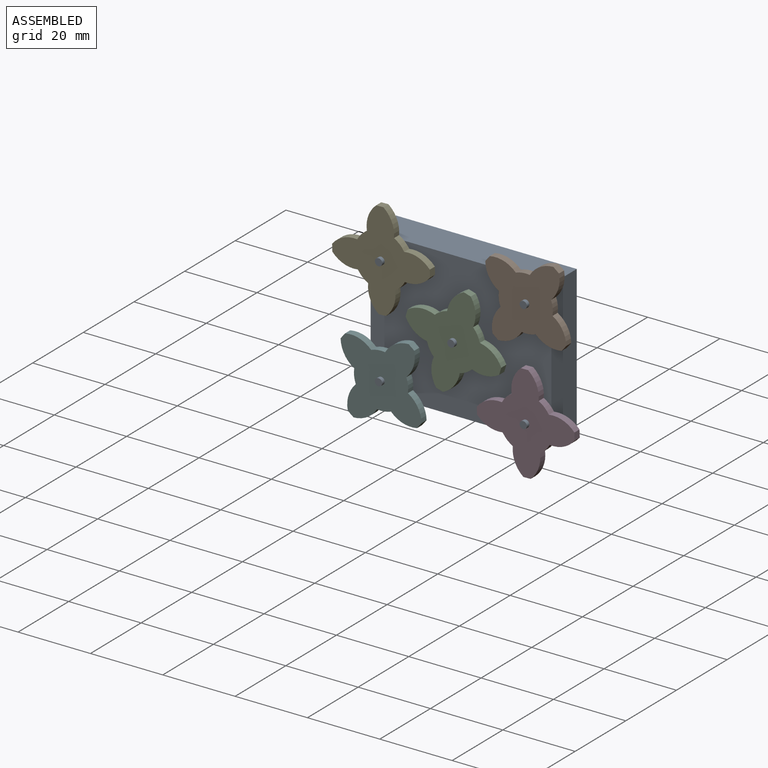
[diagram: assembled view]
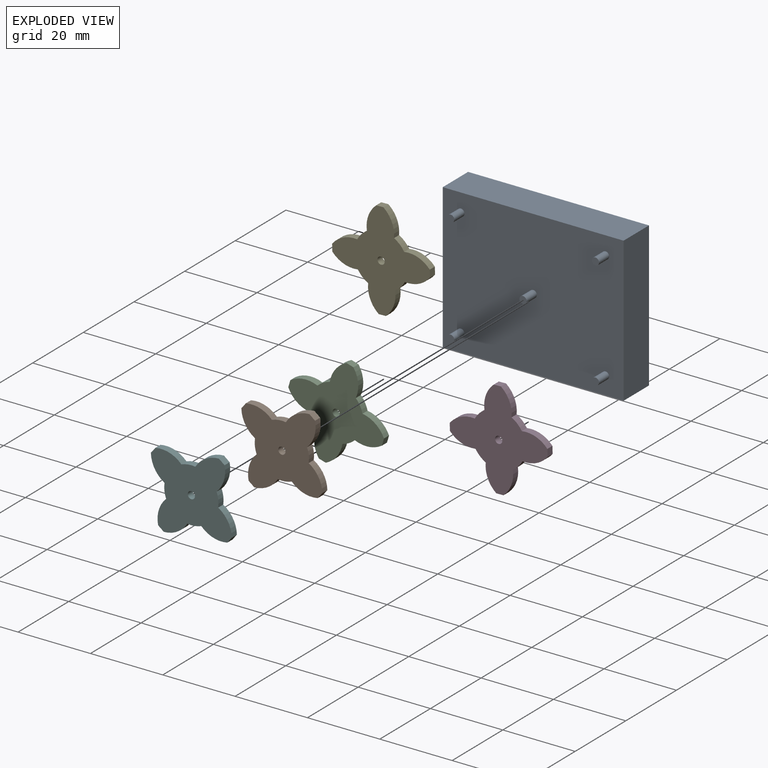
[diagram: exploded view]
GUIDED TOUR — MATED ASSEMBLY (Onshape document cedbb3737e74594927d0f77c, AutoMate assembly cedbb3737e74594927d0f77c_dc4aef09177c80593e6a7a5c_b1bb9737bac54ed19424f288_default)

This assembly has 6 components, labeled P0..P5 below (a component is one placed occurrence of a part; the same part can appear more than once), held together by 5 mates. A mate is a constraint between two components; its type names the relative motion it leaves free:
  REVOLUTE — leaves rotation about the listed axis free (a hinge).
Axis/direction vectors are unit vectors and 'through' points are millimeter coordinates, both in the assembly's world frame.

MATES
  1. REVOLUTE "Revolute 1": P0 <-> P4, axis (0.000, 1.000, 0.000) through (-31.62, -7.64, 23.10) mm
  2. REVOLUTE "Revolute 2": P0 <-> P2, axis (0.000, 1.000, 0.000) through (-11.62, -7.64, 8.10) mm
  3. REVOLUTE "Revolute 3": P0 <-> P1, axis (0.000, 1.000, 0.000) through (8.38, -7.64, 23.10) mm
  4. REVOLUTE "Revolute 5": P0 <-> P5, axis (0.000, 1.000, 0.000) through (-31.62, -7.64, -6.90) mm
  5. REVOLUTE "Revolute 4": P0 <-> P3, axis (0.000, 1.000, 0.000) through (8.38, -7.64, -6.90) mm

ASSEMBLY ORDER
  1. P4 — the base component [order verified]
  2. P3 [order verified]
  3. P0 [order verified]
  4. P2 [order verified]
  5. P5 [order verified]
  6. P1 [order verified]
Order-tag legend:
  [order verified] — this step's position reverses a verified removal order: the component was checked to insert without passing through the ones already placed.

Of the 6 components, 6 carry the full construction recipe — the FeatureScript program that regenerates the part's solid from scratch; the rest are supplied as boundary geometry only.
Each toured component is shown spotlighted twice — in the assembled view, then in the exploded view, where a leader line traces a displaced component back to its assembled socket (saturated green if recipe-attached, orange if geometry-only; every other component desaturated gray) — followed by its recipe or geometry summary and the mates that hold it.
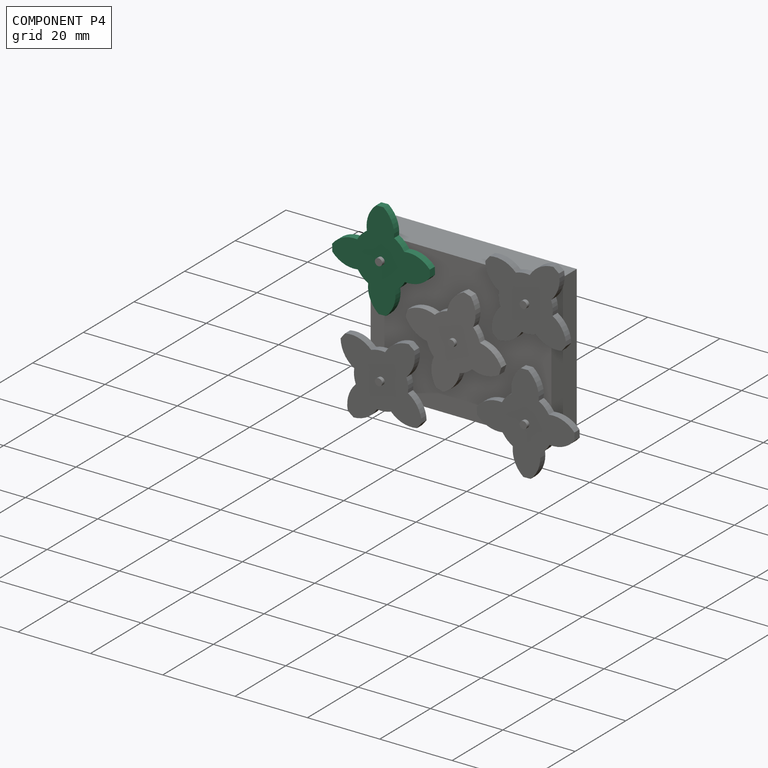
[diagram: component P4 — assembled]
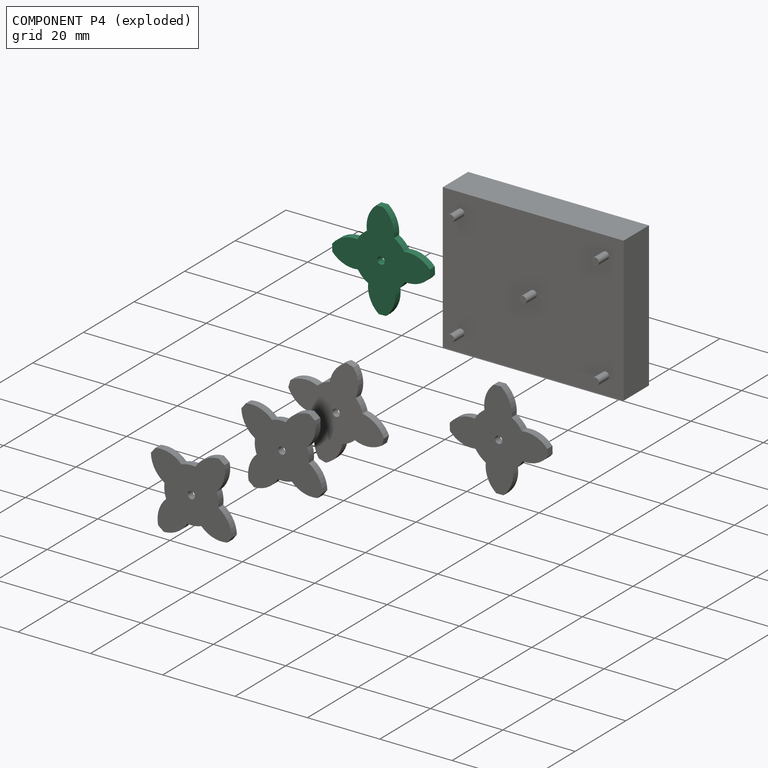
[diagram: component P4 — exploded]
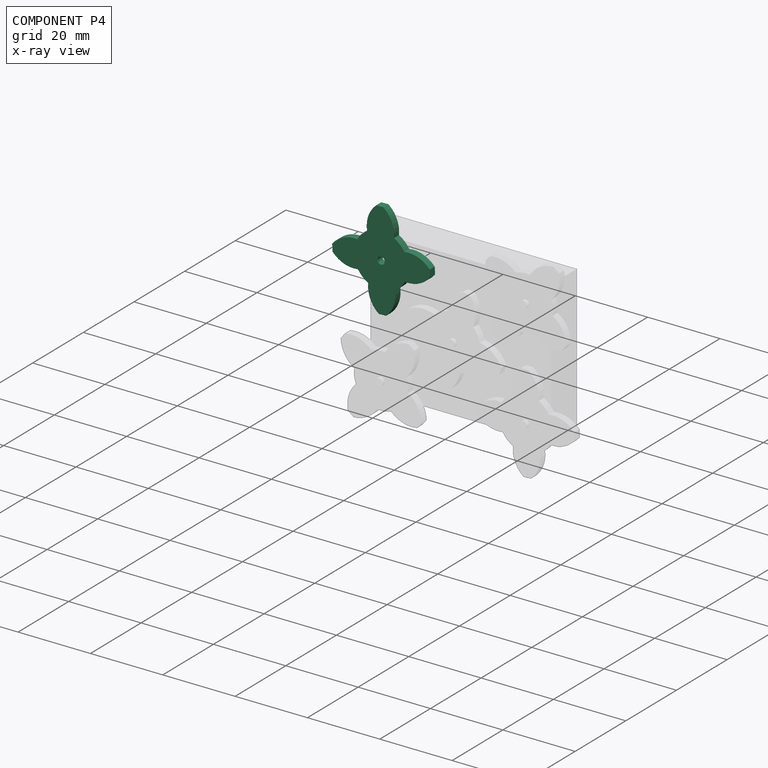
[diagram: component P4 — x-ray view]
COMPONENT P4 — same part as P1 (CADFS 00180787); its construction recipe is shown at P1.
Held by: REVOLUTE mate "Revolute 1" to P0.
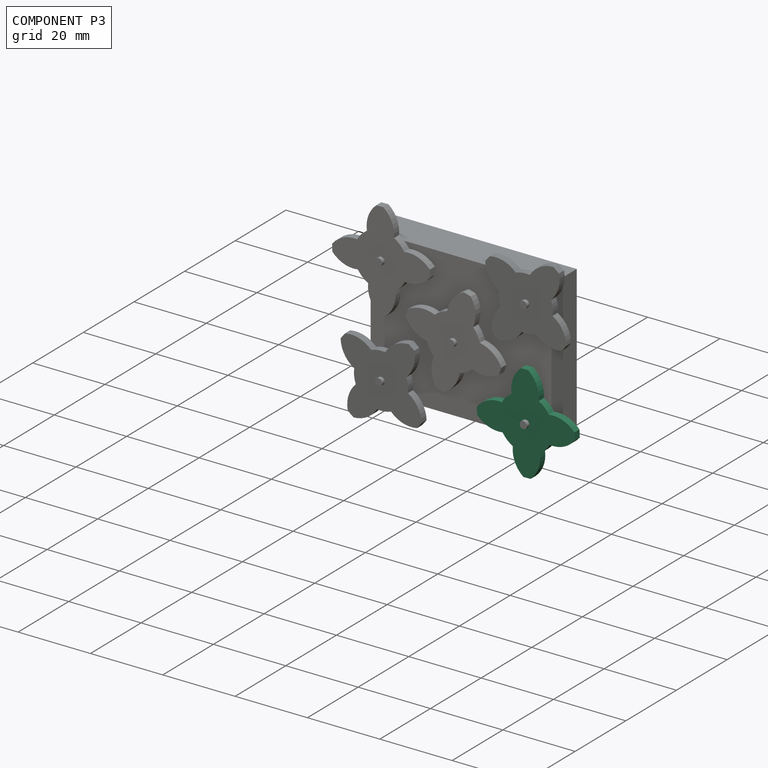
[diagram: component P3 — assembled]
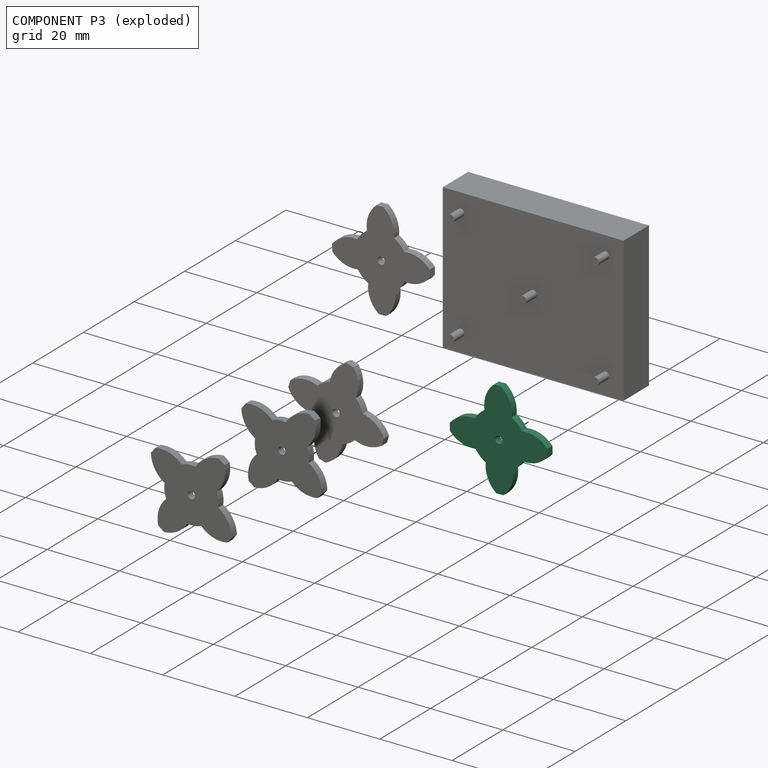
[diagram: component P3 — exploded]
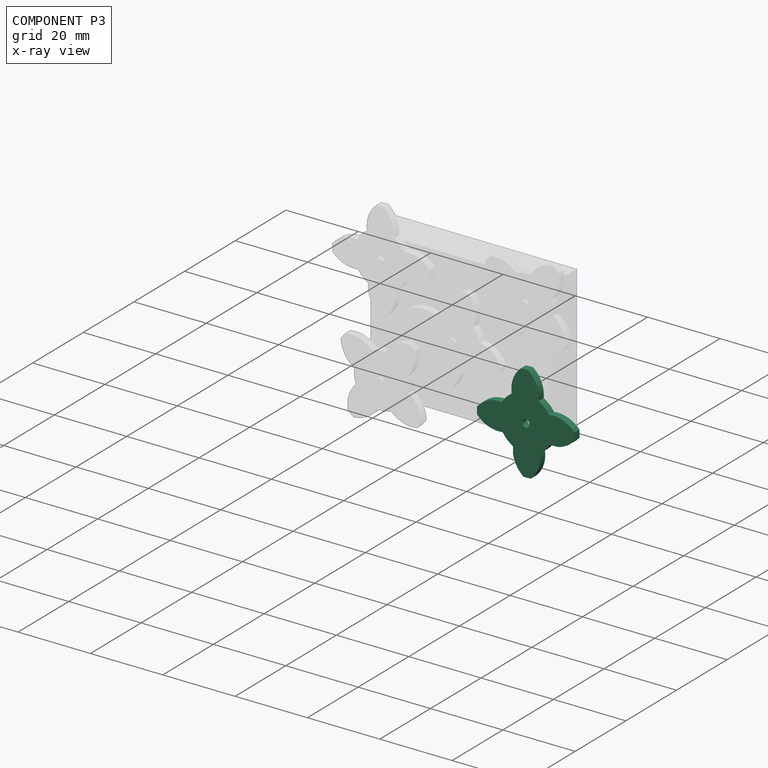
[diagram: component P3 — x-ray view]
COMPONENT P3 — same part as P1 (CADFS 00180787); its construction recipe is shown at P1.
Held by: REVOLUTE mate "Revolute 4" to P0.
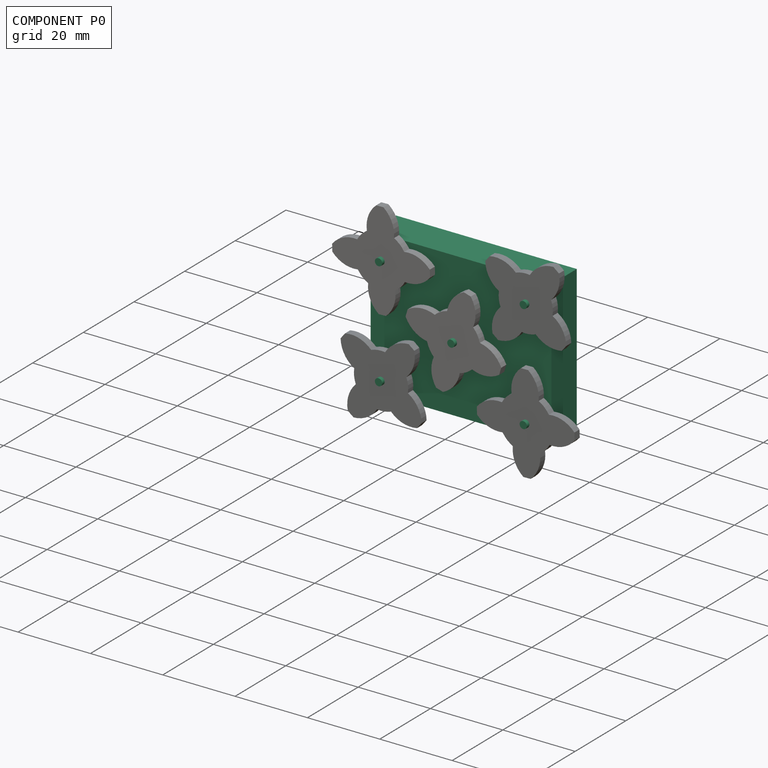
[diagram: component P0 — assembled]
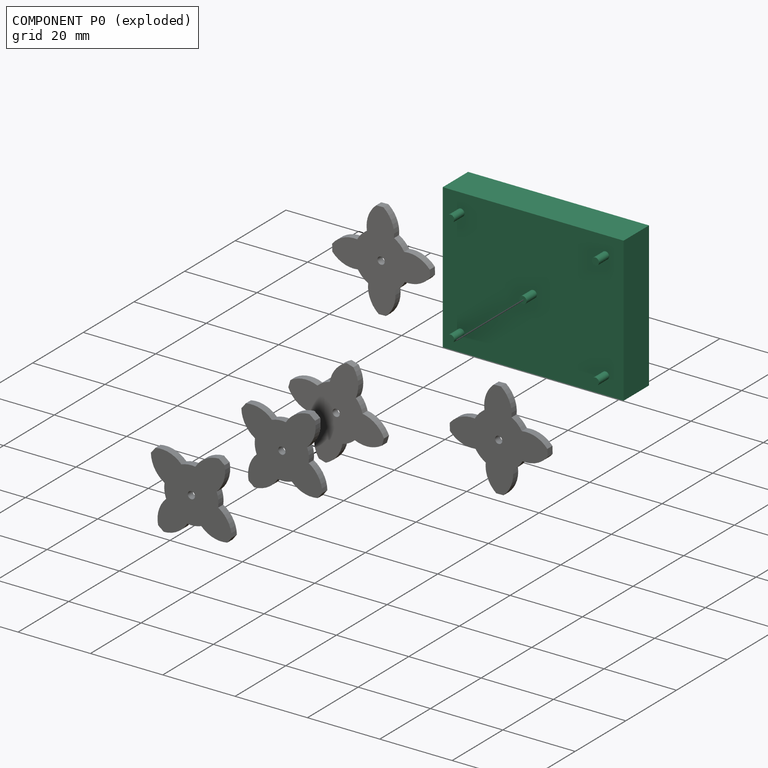
[diagram: component P0 — exploded]
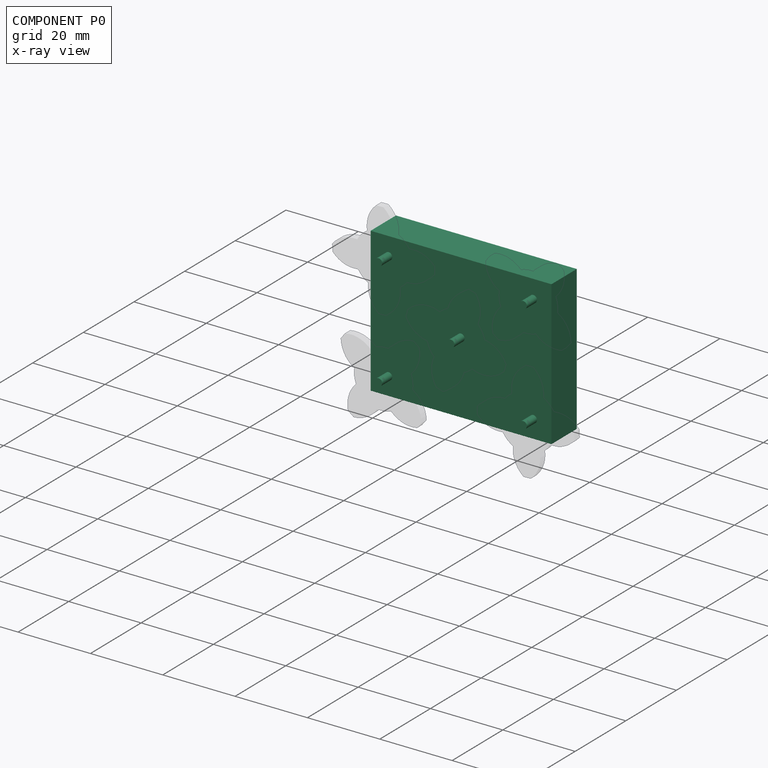
[diagram: component P0 — x-ray view]
COMPONENT P0 — recipe-attached (CADFS 00180788, mesh-verified: the recipe's output STEP matches this component's geometry to below the mesh-comparison resolution (tessellation chordal tolerance ~0.0983 mm)).
Held by: REVOLUTE mate "Revolute 1" to P4; REVOLUTE mate "Revolute 2" to P2; REVOLUTE mate "Revolute 3" to P1; REVOLUTE mate "Revolute 5" to P5; REVOLUTE mate "Revolute 4" to P3.
Construction recipe (FeatureScript — the CAD program that rebuilds this solid; sketch coordinates are in the units given by the * unit suffixes, e.g. mm):

FeatureScript 1511;
import(path : "onshape/std/geometry.fs", version : "1511.0");
import(path : "onshape/std/common.fs", version : "1511.0");
const mm = millimeter;
const VERTEX = EntityType.VERTEX;
const EDGE = EntityType.EDGE;
const FACE = EntityType.FACE;
const BODY = EntityType.BODY;
function v(x, y){return vector(x, y);}
function OD(order){return orderDisambiguation(order);}
function OSD(set){return originalSetDisambiguation(set);}
function TD(topology){return topologyDisambiguation(topology);}
function TDD(query){return trueDependencyDisambiguation(query);}
function sQuery(a, b, c) {return sketchEntityQuery(a, b, c);}

annotation { "Feature Type Name" : "Feature", "Feature Type Description" : "" }
export const myFeature = defineFeature(function(context is Context, id is Id, definition is map)
    precondition{}
    {
        {
            var Q0;
            Q0=qCreatedBy(makeId("Right.planeOp"),FACE);
            var sketch = newSketch(context, id + "F0", { "sketchPlane" : qUnion([Q0])});
            skLineSegment(sketch, "E0.bottom", {"start": v(5, -20) * mm, "end": v(-5, -20) * mm});
            skLineSegment(sketch, "E0.top", {"start": v(5, 20) * mm, "end": v(-5, 20) * mm});
            skLineSegment(sketch, "E0.left", {"start": v(5, -20) * mm, "end": v(5, 20) * mm});
            skLineSegment(sketch, "E0.right", {"start": v(-5, -20) * mm, "end": v(-5, 20) * mm});
            skPoint(sketch, "E0.middle", {"position": v(0, 0) * mm});
            skSolve(sketch);
        }
        {
            var Q0;
            Q0=makeQuery(id+"F0.imprint","IMPRINT",FACE,{"disambiguationData":[TD([[makeQuery(id+"F0.imprint","IMPRINT",EDGE,{"derivedFrom":sQuery(id+"F0.wireOp",EDGE,"E0.bottom")}),-1.0]])]});
            extrude(context, id + "F1", {"entities" : qUnion([Q0]), "depth" : 25 * mm, "hasSecondDirection" : true, "secondDirectionOppositeDirection" : true, "secondDirectionDepth" : 25 * mm});
        }
        {
            var Q0;
            Q0=makeQuery(id+"F1.opExtrude","SWEPT_FACE",FACE,{"disambiguationData":[OSD([sQuery(id+"F0.wireOp",EDGE,"E0.right")])]});
            var sketch = newSketch(context, id + "F2", { "sketchPlane" : qUnion([Q0])});
            skCircle(sketch, "E1", {"center": v(0, 0) * mm, "radius": 1 * mm});
            skCircle(sketch, "E2", {"center": v(-20, 15) * mm, "radius": 1 * mm});
            skCircle(sketch, "E3", {"center": v(-20, -15) * mm, "radius": 1 * mm});
            skCircle(sketch, "E4", {"center": v(20, -15) * mm, "radius": 1 * mm});
            skCircle(sketch, "E5", {"center": v(20, 15) * mm, "radius": 1 * mm});
            skSolve(sketch);
        }
        {
            var Q0;
            Q0 = qSketchRegion(id + "F2", true);
            extrude(context, id + "F3", {"entities" : qUnion([Q0]), "operationType" : NewBodyOperationType.ADD, "depth" : 4 * mm});
        }
    });
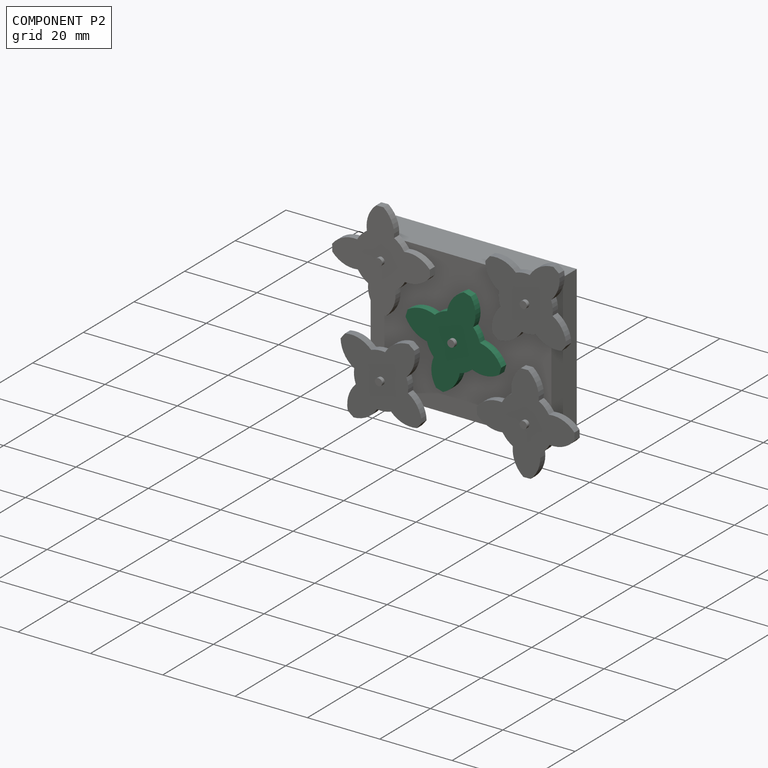
[diagram: component P2 — assembled]
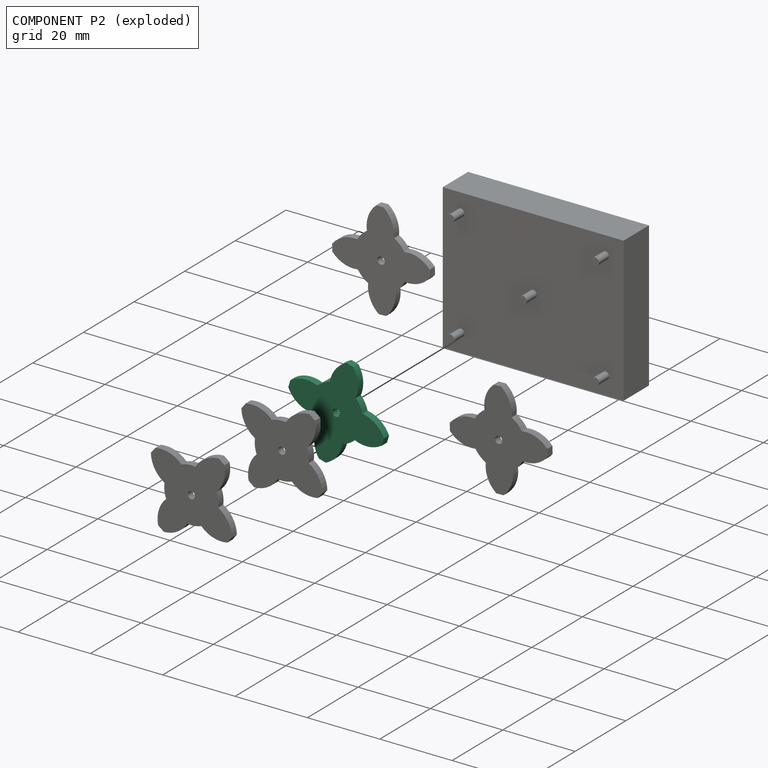
[diagram: component P2 — exploded]
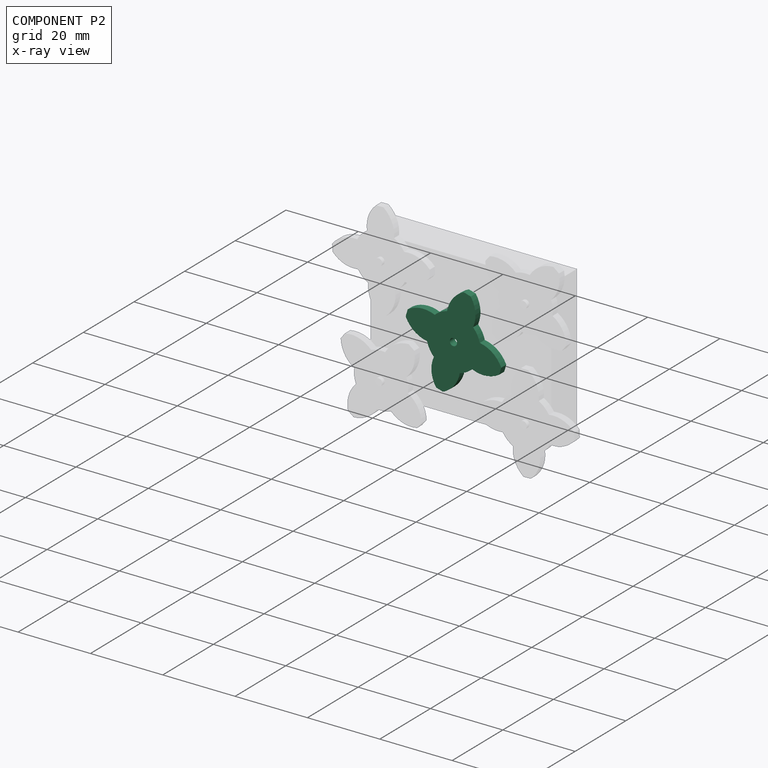
[diagram: component P2 — x-ray view]
COMPONENT P2 — same part as P1 (CADFS 00180787); its construction recipe is shown at P1.
Held by: REVOLUTE mate "Revolute 2" to P0.
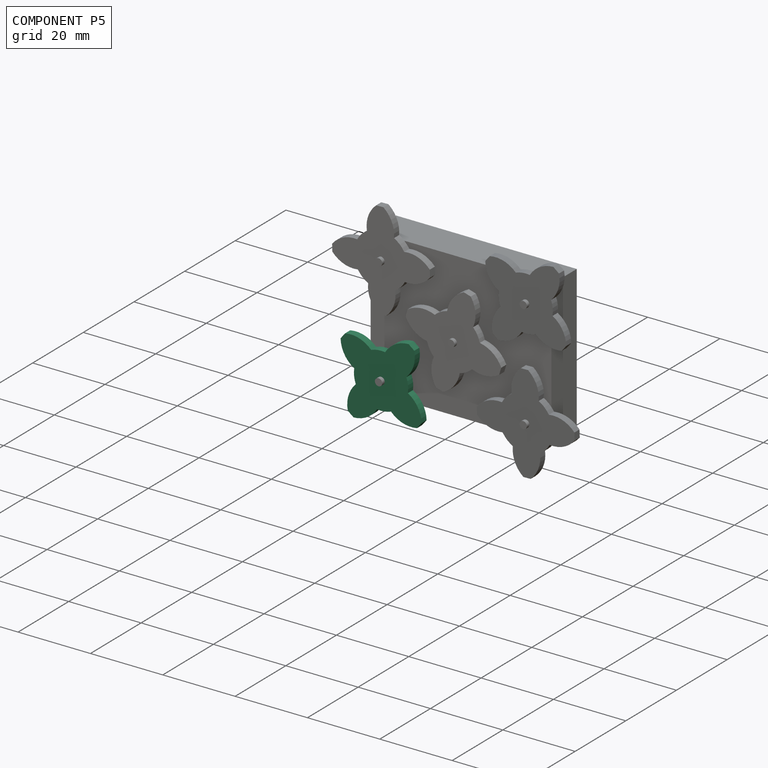
[diagram: component P5 — assembled]
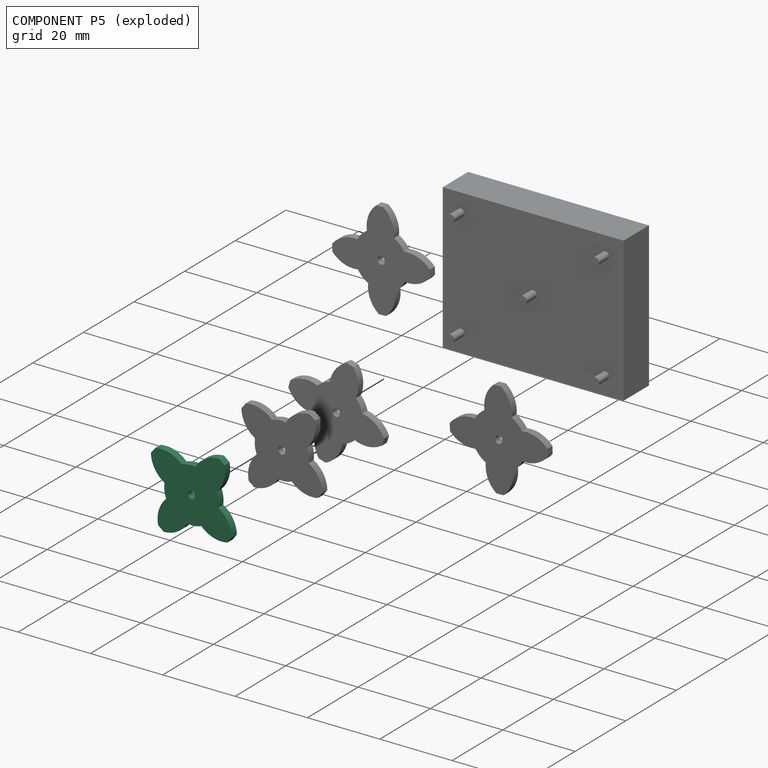
[diagram: component P5 — exploded]
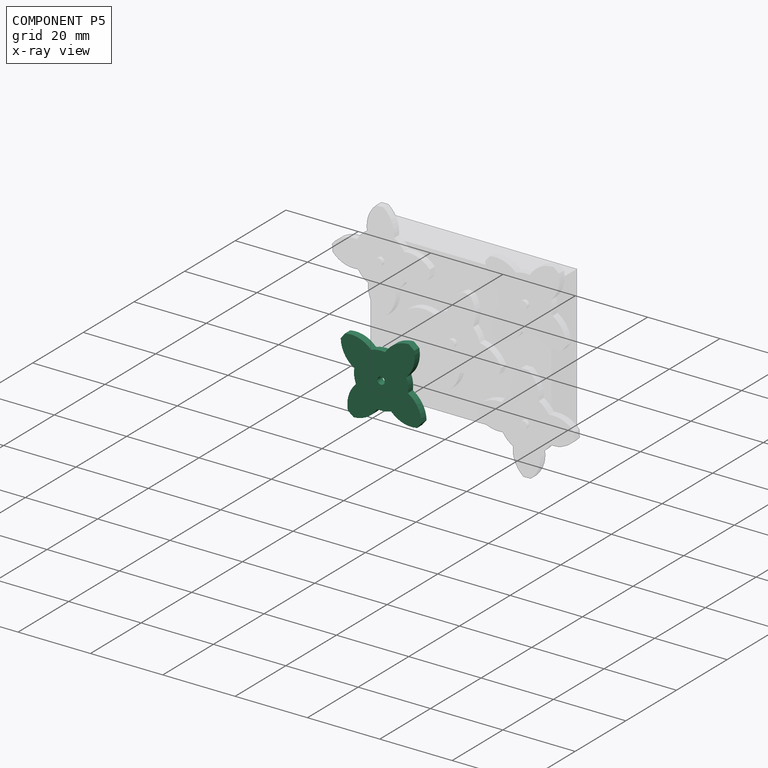
[diagram: component P5 — x-ray view]
COMPONENT P5 — same part as P1 (CADFS 00180787); its construction recipe is shown at P1.
Held by: REVOLUTE mate "Revolute 5" to P0.
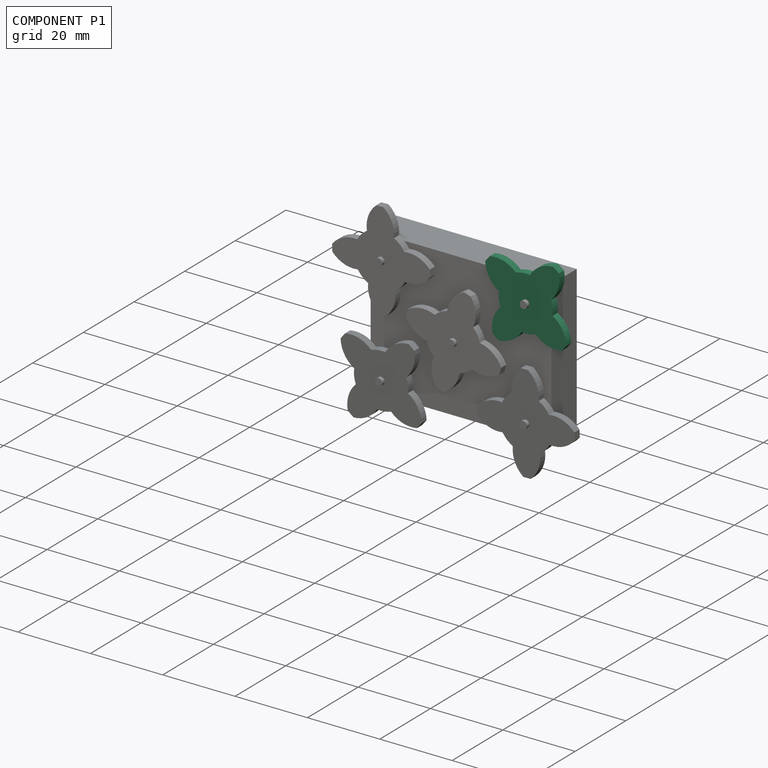
[diagram: component P1 — assembled]
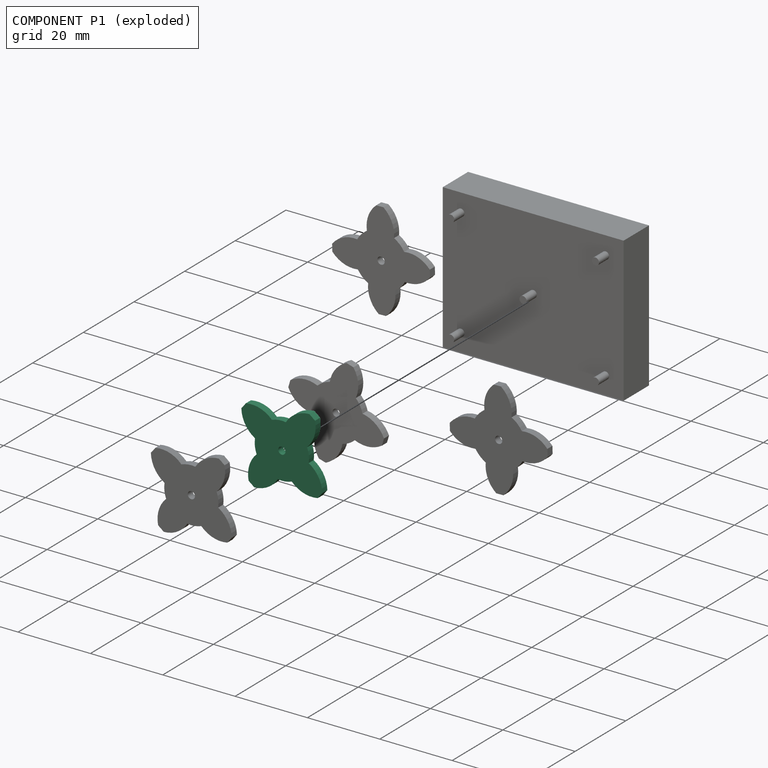
[diagram: component P1 — exploded]
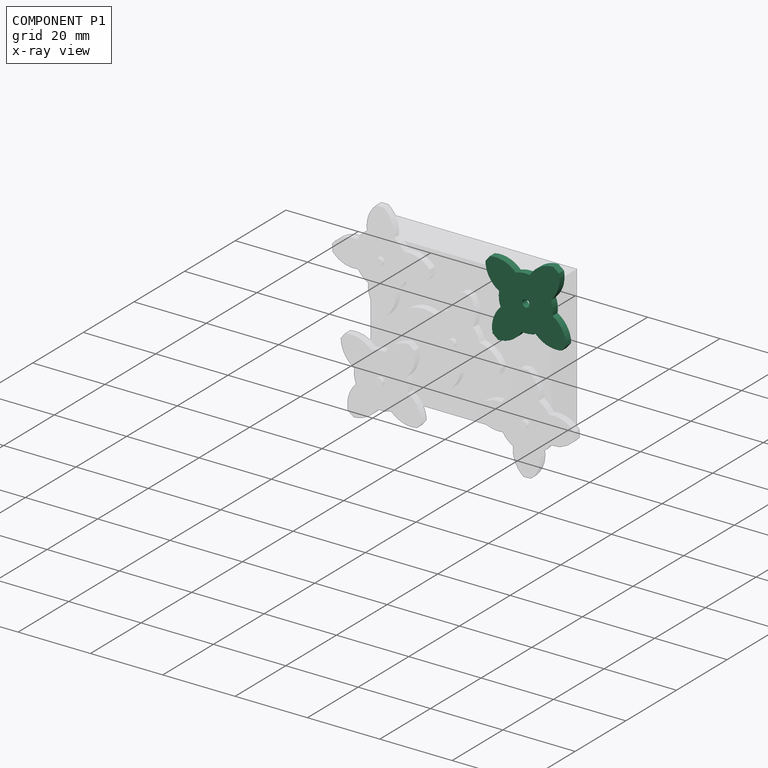
[diagram: component P1 — x-ray view]
COMPONENT P1 — recipe-attached (CADFS 00180787, mesh-verified: the recipe's output STEP matches this component's geometry to below the mesh-comparison resolution (tessellation chordal tolerance ~0.0574 mm)).
Held by: REVOLUTE mate "Revolute 3" to P0.
Construction recipe (FeatureScript — the CAD program that rebuilds this solid; sketch coordinates are in the units given by the * unit suffixes, e.g. mm):

FeatureScript 1511;
import(path : "onshape/std/geometry.fs", version : "1511.0");
import(path : "onshape/std/common.fs", version : "1511.0");
const mm = millimeter;
const VERTEX = EntityType.VERTEX;
const EDGE = EntityType.EDGE;
const FACE = EntityType.FACE;
const BODY = EntityType.BODY;
function v(x, y){return vector(x, y);}
function OD(order){return orderDisambiguation(order);}
function OSD(set){return originalSetDisambiguation(set);}
function TD(topology){return topologyDisambiguation(topology);}
function TDD(query){return trueDependencyDisambiguation(query);}
function sQuery(a, b, c) {return sketchEntityQuery(a, b, c);}

annotation { "Feature Type Name" : "Feature", "Feature Type Description" : "" }
export const myFeature = defineFeature(function(context is Context, id is Id, definition is map)
    precondition{}
    {
        {
            var Q0;
            Q0=qCreatedBy(makeId("Top.planeOp"),FACE);
            var sketch = newSketch(context, id + "F0", { "sketchPlane" : qUnion([Q0])});
            skCircle(sketch, "E0", {"center": v(0, 0) * mm, "radius": 7.5 * mm});
            skLineSegment(sketch, "E1", {"start": v(0, 0) * mm, "end": v(0, 7.5) * mm, "construction": true});
            skLineSegment(sketch, "E2", {"start": v(0, 7.5) * mm, "end": v(0, 13.5) * mm});
            skLineSegment(sketch, "E3", {"start": v(0, 13.5) * mm, "end": v(-1, 13.5) * mm});
            skArc(sketch, "E4", {"start": v(-1, 13.5) * mm, "mid": v(-3.27, 10.35) * mm, "end": v(-3.75, 6.5) * mm});
            skLineSegment(sketch, "E5.MirrorCS", {"start": v(0, 13.5) * mm, "end": v(1, 13.5) * mm});
            skArc(sketch, "E6.MirrorCS", {"start": v(1, 13.5) * mm, "mid": v(3.27, 10.35) * mm, "end": v(3.75, 6.5) * mm});
            skArc(sketch, "E7.1.0", {"start": v(-13.5, -1) * mm, "mid": v(-10.35, -3.27) * mm, "end": v(-6.5, -3.75) * mm});
            skLineSegment(sketch, "E7.1.1", {"start": v(-13.5, 0) * mm, "end": v(-13.5, -1) * mm});
            skLineSegment(sketch, "E7.1.2", {"start": v(-13.5, 0) * mm, "end": v(-13.5, 1) * mm});
            skArc(sketch, "E7.1.3", {"start": v(-13.5, 1) * mm, "mid": v(-10.35, 3.27) * mm, "end": v(-6.5, 3.75) * mm});
            skArc(sketch, "E7.2.0", {"start": v(1, -13.5) * mm, "mid": v(3.27, -10.35) * mm, "end": v(3.75, -6.5) * mm});
            skLineSegment(sketch, "E7.2.1", {"start": v(0, -13.5) * mm, "end": v(1, -13.5) * mm});
            skLineSegment(sketch, "E7.2.2", {"start": v(0, -13.5) * mm, "end": v(-1, -13.5) * mm});
            skArc(sketch, "E7.2.3", {"start": v(-1, -13.5) * mm, "mid": v(-3.27, -10.35) * mm, "end": v(-3.75, -6.5) * mm});
            skArc(sketch, "E7.3.0", {"start": v(13.5, 1) * mm, "mid": v(10.35, 3.27) * mm, "end": v(6.5, 3.75) * mm});
            skLineSegment(sketch, "E7.3.1", {"start": v(13.5, 0) * mm, "end": v(13.5, 1) * mm});
            skLineSegment(sketch, "E7.3.2", {"start": v(13.5, 0) * mm, "end": v(13.5, -1) * mm});
            skArc(sketch, "E7.3.3", {"start": v(13.5, -1) * mm, "mid": v(10.35, -3.27) * mm, "end": v(6.5, -3.75) * mm});
            skSolve(sketch);
        }
        {
            var Q0;
            Q0 = qSketchRegion(id + "F0", true);
            extrude(context, id + "F1", {"entities" : qUnion([Q0]), "depth" : 2 * mm});
        }
        {
            var Q0;
            Q0=makeQuery(id+"F1.opExtrude","CAP_FACE",FACE,{"disambiguationData":[OSD([sQuery(id+"F0.wireOp",EDGE,"E0"),sQuery(id+"F0.wireOp",EDGE,"E3"),sQuery(id+"F0.wireOp",EDGE,"E4"),sQuery(id+"F0.wireOp",EDGE,"E5.MirrorCS"),sQuery(id+"F0.wireOp",EDGE,"E6.MirrorCS"),sQuery(id+"F0.wireOp",EDGE,"E7.1.0"),sQuery(id+"F0.wireOp",EDGE,"E7.1.1"),sQuery(id+"F0.wireOp",EDGE,"E7.1.2"),sQuery(id+"F0.wireOp",EDGE,"E7.1.3"),sQuery(id+"F0.wireOp",EDGE,"E7.2.0"),sQuery(id+"F0.wireOp",EDGE,"E7.2.1"),sQuery(id+"F0.wireOp",EDGE,"E7.2.2"),sQuery(id+"F0.wireOp",EDGE,"E7.2.3"),sQuery(id+"F0.wireOp",EDGE,"E7.3.0"),sQuery(id+"F0.wireOp",EDGE,"E7.3.1"),sQuery(id+"F0.wireOp",EDGE,"E7.3.2"),sQuery(id+"F0.wireOp",EDGE,"E7.3.3")])],"isStart":false});
            var sketch = newSketch(context, id + "F2", { "sketchPlane" : qUnion([Q0])});
            skCircle(sketch, "E8", {"center": v(0, 0) * mm, "radius": 1 * mm});
            skSolve(sketch);
        }
        {
            var Q0;
            Q0 = qSketchRegion(id + "F2", true);
            extrude(context, id + "F3", {"entities" : qUnion([Q0]), "operationType" : NewBodyOperationType.REMOVE, "endBound" : BoundingType.THROUGH_ALL, "oppositeDirection" : true, "depth" : 25 * mm});
        }
    });
PROVENANCE & LICENSES
Assembly (occurrences, transforms, mates, per-part STEP geometry): AutoMate dataset, Zenodo record 7776208, CC0.
Construction recipes: CADFS (HuggingFace VladPyatov/CADFS, CC-BY-4.0, layered over the ABC dataset), FeatureScript reconstruction programs keyed by ABC model id.
Join: ABC meta listings map ABC model id -> Onshape documentId; within a shared document, parts are matched by geometric signature (bounding-box dims + volume at 0.1% relative tolerance, exact B-rep face/solid counts).
Verification: 6 of this assembly's 6 components carry a recipe attachment, and every attachment is mesh-verified: the CADFS STEP and the AutoMate member STEP were compared as meshes in their shared local frame (symmetric sampled-point-to-mesh distance); worst across the 6 attachments: below the mesh-comparison resolution (tessellation chordal tolerance ~0.0983 mm) on a 66 mm part.
Renders: orthographic iso camera (az 35 / el 25); the floor grid conveys scale (grid pitch printed in each image; no ruler). In the exploded view each component is displaced by its stored offset vector: the offsets alone carry the explosion direction (mate normal/axis signs are not orientation cues and do not encode it), and separation distances are assigned per mate-chain, not proportionally to assembly-order depth.
